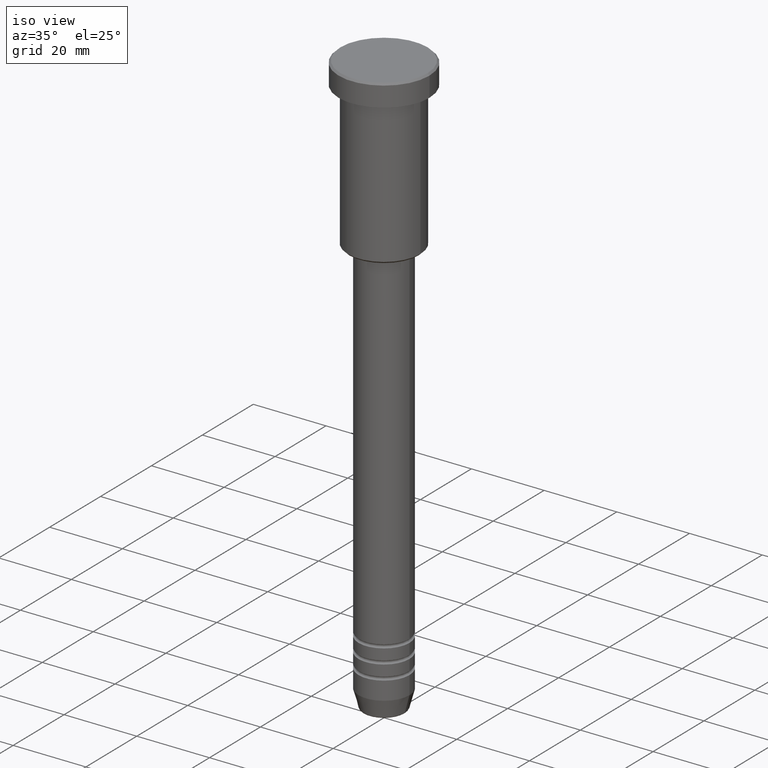
[diagram: clean part render]
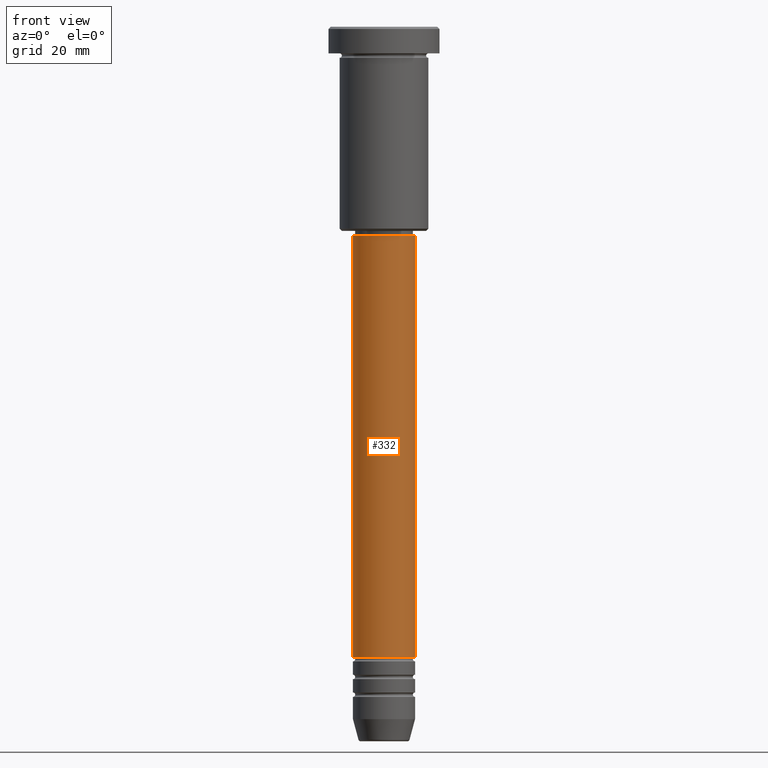
[diagram: tour spotlight — one face highlighted and labeled with its STEP entity id]
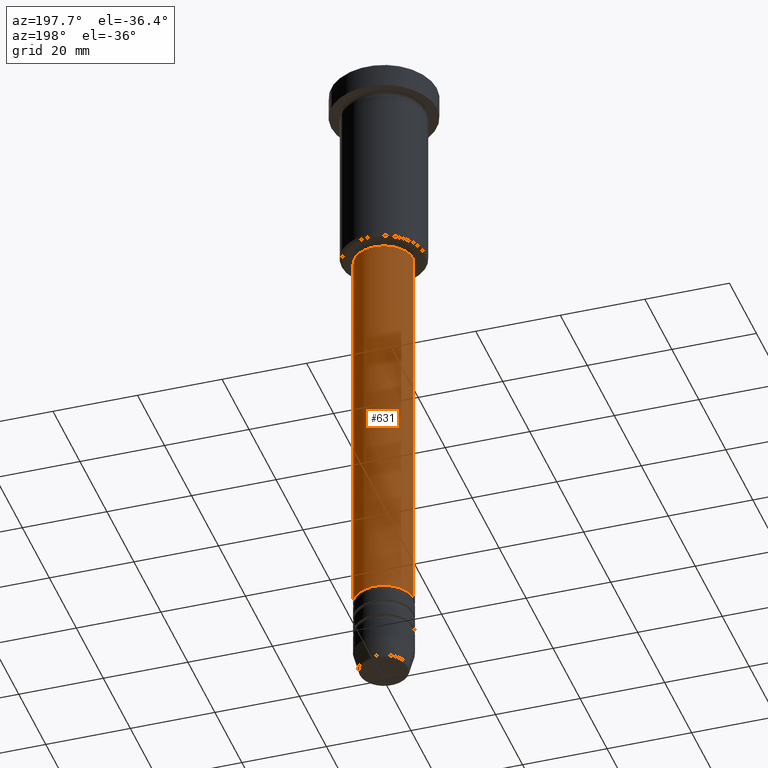
[diagram: tour spotlight — one face highlighted and labeled with its STEP entity id]
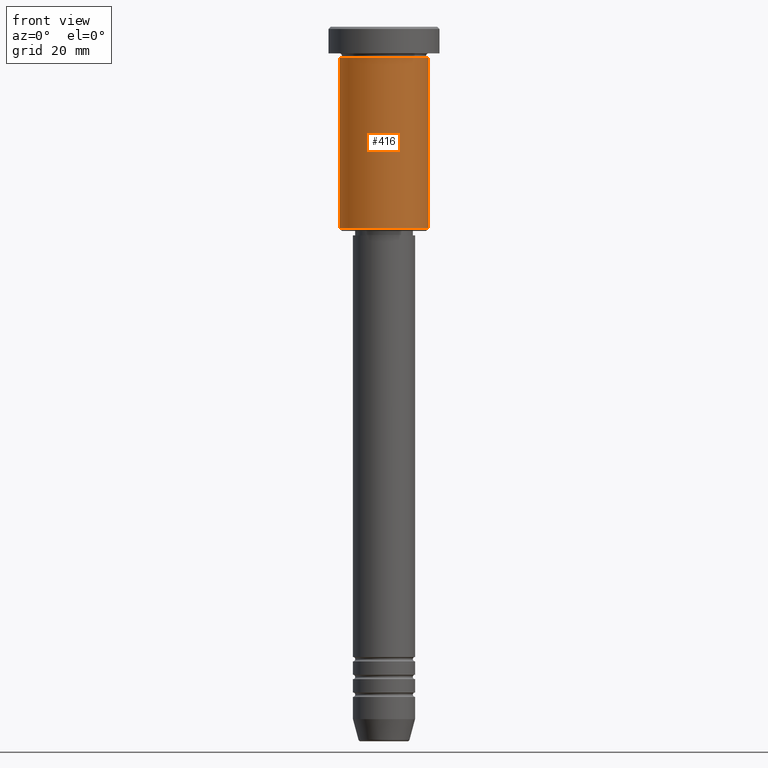
[diagram: tour spotlight — one face highlighted and labeled with its STEP entity id]
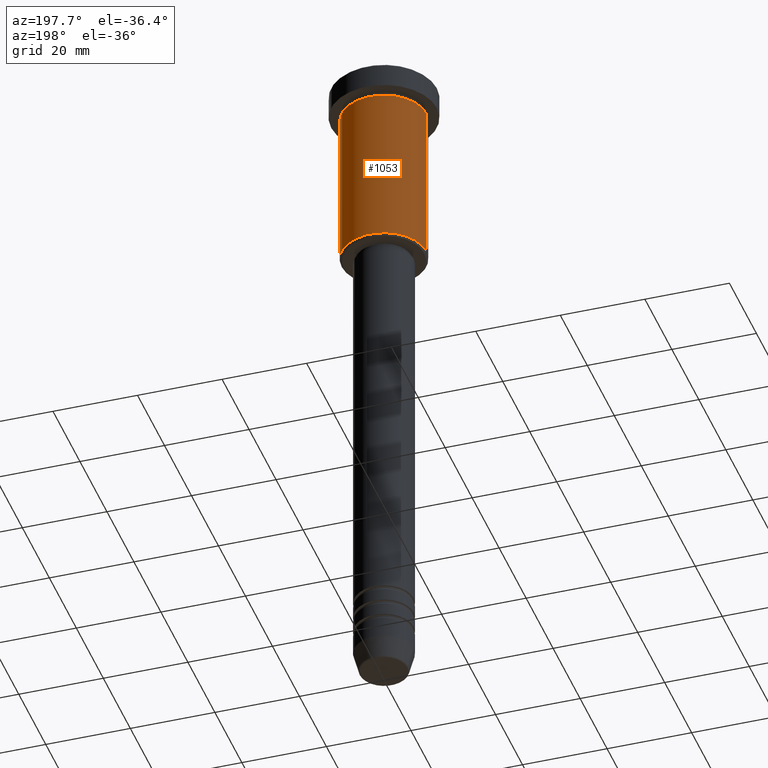
[diagram: tour spotlight — one face highlighted and labeled with its STEP entity id]
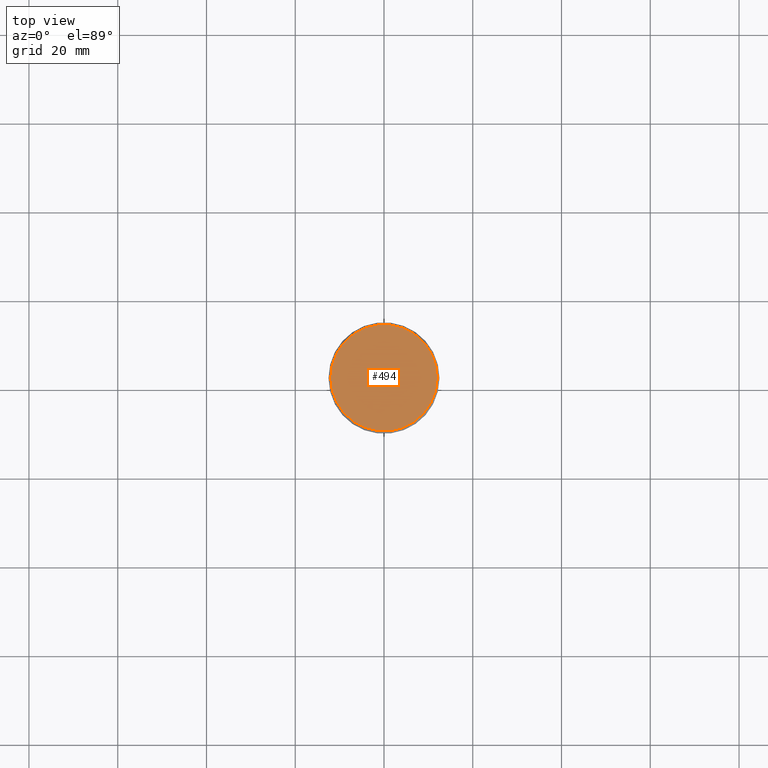
[diagram: tour spotlight — one face highlighted and labeled with its STEP entity id]
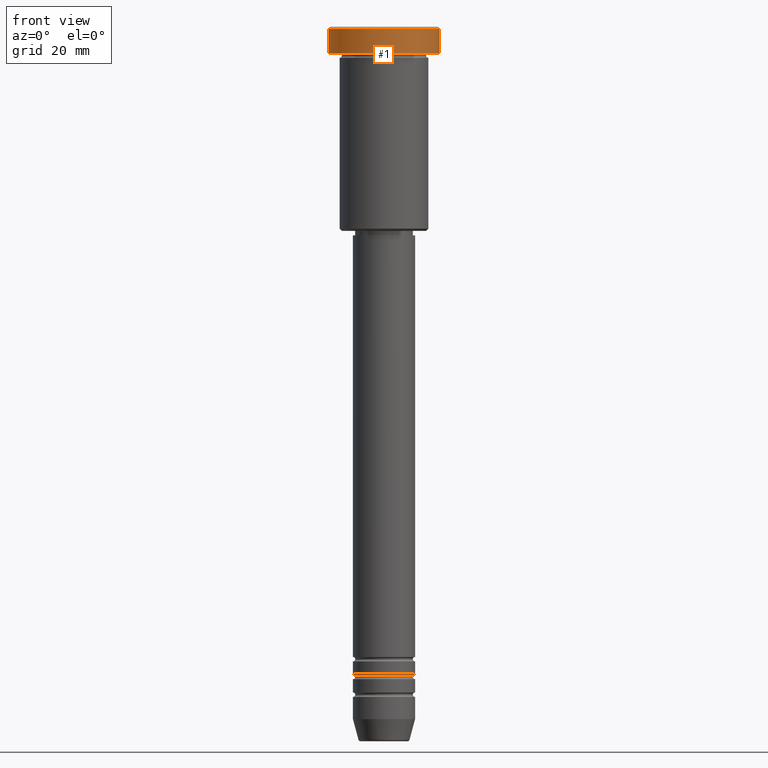
[diagram: tour spotlight — one face highlighted and labeled with its STEP entity id]
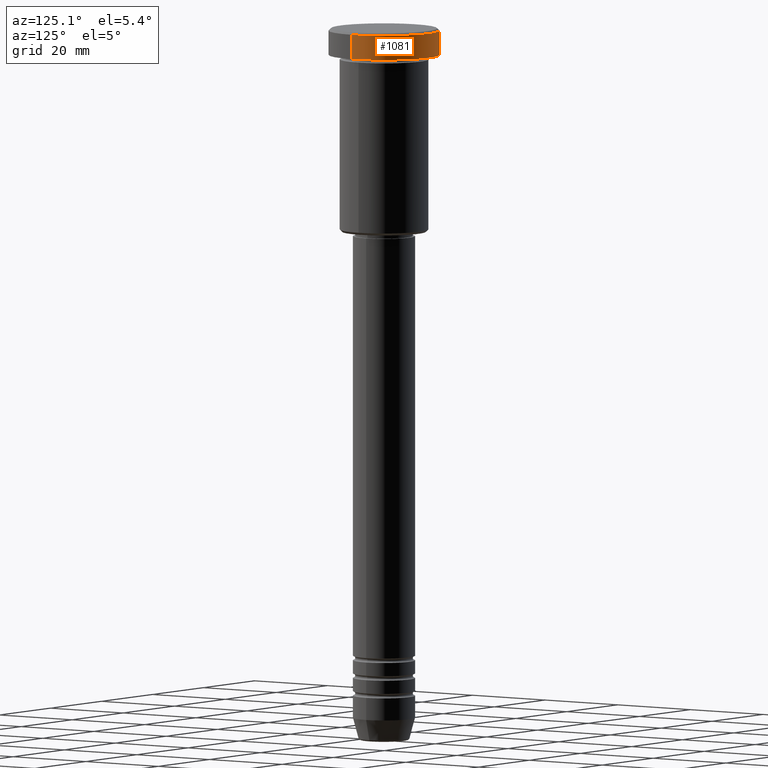
[diagram: tour spotlight — one face highlighted and labeled with its STEP entity id]
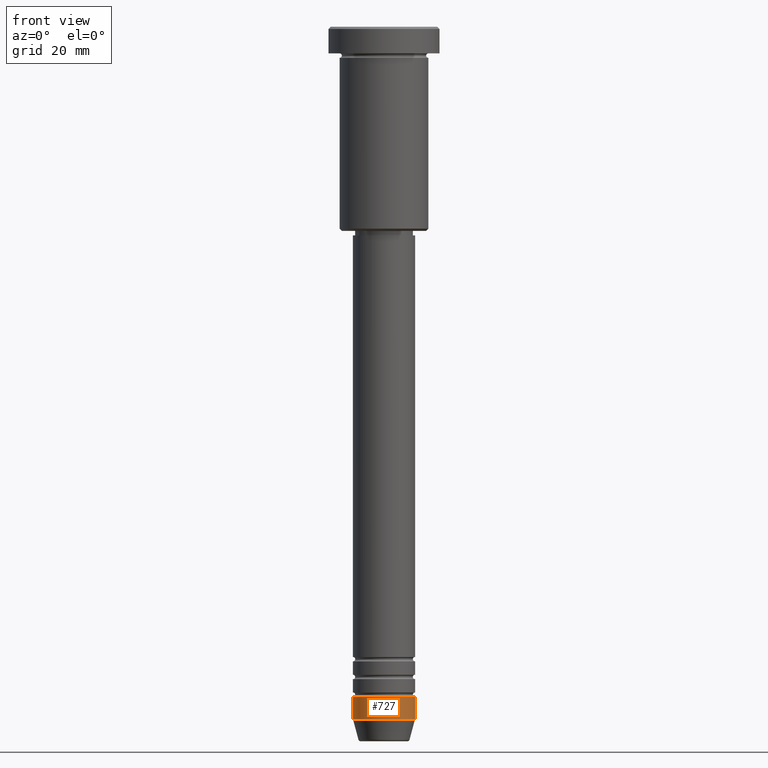
[diagram: tour spotlight — one face highlighted and labeled with its STEP entity id]
A machine part: a face-by-face anatomy tour. The part has 43 B-rep faces; the first image is the clean iso view, then the 8 largest visible faces are spotlighted one at a time (largest first), each with its STEP entity span.

Face 1 — front view, entity #332. In plain terms, the highlighted cylindrical surface (edge-blend (fillet) strip) has radius 7 mm, axis along (-0, -0, 1).
Definition (entity closure, byte-faithful):
#41 = VERTEX_POINT ( 'NONE', #976 ) ;
#63 = ORIENTED_EDGE ( 'NONE', *, *, #873, .T. ) ;
#94 = CARTESIAN_POINT ( 'NONE',  ( 0.000000000000000000, 0.000000000000000000, -141.9999999999999147 ) ) ;
#139 = ORIENTED_EDGE ( 'NONE', *, *, #516, .F. ) ;
#196 = DIRECTION ( 'NONE',  ( -0.000000000000000000, -0.000000000000000000, 1.000000000000000000 ) ) ;
#247 = VECTOR ( 'NONE', #915, 1000.000000000000000 ) ;
#261 = CYLINDRICAL_SURFACE ( 'NONE', #1136, 7.000000000000000888 ) ;
#291 = CARTESIAN_POINT ( 'NONE',  ( -7.000000000000000888, 8.572527594031474176E-16, 0.000000000000000000 ) ) ;
#296 = ORIENTED_EDGE ( 'NONE', *, *, #535, .F. ) ;
#301 = DIRECTION ( 'NONE',  ( 1.000000000000000000, 0.000000000000000000, 0.000000000000000000 ) ) ;
#332 = ADVANCED_FACE ( 'NONE', ( #995 ), #261, .T. ) ;
#342 = DIRECTION ( 'NONE',  ( 1.000000000000000000, 0.000000000000000000, 0.000000000000000000 ) ) ;
#408 = CIRCLE ( 'NONE', #448, 7.000000000000000888 ) ;
#435 = DIRECTION ( 'NONE',  ( -0.000000000000000000, -0.000000000000000000, 1.000000000000000000 ) ) ;
#448 = AXIS2_PLACEMENT_3D ( 'NONE', #929, #470, #832 ) ;
#457 = LINE ( 'NONE', #641, #247 ) ;
#470 = DIRECTION ( 'NONE',  ( -0.000000000000000000, -0.000000000000000000, 1.000000000000000000 ) ) ;
#476 = ORIENTED_EDGE ( 'NONE', *, *, #1157, .T. ) ;
#516 = EDGE_CURVE ( 'NONE', #612, #616, #408, .T. ) ;
#535 = EDGE_CURVE ( 'NONE', #41, #612, #1008, .T. ) ;
#585 = AXIS2_PLACEMENT_3D ( 'NONE', #94, #835, #301 ) ;
#612 = VERTEX_POINT ( 'NONE', #876 ) ;
#616 = VERTEX_POINT ( 'NONE', #856 ) ;
#629 = CARTESIAN_POINT ( 'NONE',  ( 0.000000000000000000, 0.000000000000000000, 0.000000000000000000 ) ) ;
#641 = CARTESIAN_POINT ( 'NONE',  ( 7.000000000000000888, 0.000000000000000000, 0.000000000000000000 ) ) ;
#783 = EDGE_LOOP ( 'NONE', ( #296, #476, #63, #139 ) ) ;
#818 = CARTESIAN_POINT ( 'NONE',  ( 7.000000000000000888, 0.000000000000000000, -141.9999999999999147 ) ) ;
#832 = DIRECTION ( 'NONE',  ( 1.000000000000000000, 0.000000000000000000, 0.000000000000000000 ) ) ;
#835 = DIRECTION ( 'NONE',  ( -0.000000000000000000, -0.000000000000000000, 1.000000000000000000 ) ) ;
#856 = CARTESIAN_POINT ( 'NONE',  ( 7.000000000000000888, 0.000000000000000000, -47.00000000000000711 ) ) ;
#873 = EDGE_CURVE ( 'NONE', #1165, #616, #457, .T. ) ;
#876 = CARTESIAN_POINT ( 'NONE',  ( -7.000000000000000888, 8.572527594031474176E-16, -47.00000000000000711 ) ) ;
#915 = DIRECTION ( 'NONE',  ( -0.000000000000000000, -0.000000000000000000, 1.000000000000000000 ) ) ;
#929 = CARTESIAN_POINT ( 'NONE',  ( 0.000000000000000000, 0.000000000000000000, -47.00000000000000711 ) ) ;
#947 = CIRCLE ( 'NONE', #585, 7.000000000000000888 ) ;
#976 = CARTESIAN_POINT ( 'NONE',  ( -7.000000000000000888, 8.572527594031474176E-16, -141.9999999999999147 ) ) ;
#995 = FACE_OUTER_BOUND ( 'NONE', #783, .T. ) ;
#1008 = LINE ( 'NONE', #291, #1120 ) ;
#1120 = VECTOR ( 'NONE', #196, 1000.000000000000000 ) ;
#1136 = AXIS2_PLACEMENT_3D ( 'NONE', #629, #435, #342 ) ;
#1157 = EDGE_CURVE ( 'NONE', #41, #1165, #947, .T. ) ;
#1165 = VERTEX_POINT ( 'NONE', #818 ) ;

Face 2 — auxiliary view, entity #631. In plain terms, the highlighted cylindrical surface (edge-blend (fillet) strip) has radius 7 mm, axis along (-0, -0, 1).
Definition (entity closure, byte-faithful):
#41 = VERTEX_POINT ( 'NONE', #976 ) ;
#64 = FACE_OUTER_BOUND ( 'NONE', #868, .T. ) ;
#71 = AXIS2_PLACEMENT_3D ( 'NONE', #1128, #780, #1050 ) ;
#128 = AXIS2_PLACEMENT_3D ( 'NONE', #898, #791, #811 ) ;
#196 = DIRECTION ( 'NONE',  ( -0.000000000000000000, -0.000000000000000000, 1.000000000000000000 ) ) ;
#244 = CYLINDRICAL_SURFACE ( 'NONE', #71, 7.000000000000000888 ) ;
#247 = VECTOR ( 'NONE', #915, 1000.000000000000000 ) ;
#291 = CARTESIAN_POINT ( 'NONE',  ( -7.000000000000000888, 8.572527594031474176E-16, 0.000000000000000000 ) ) ;
#426 = EDGE_CURVE ( 'NONE', #616, #612, #809, .T. ) ;
#432 = ORIENTED_EDGE ( 'NONE', *, *, #732, .T. ) ;
#443 = ORIENTED_EDGE ( 'NONE', *, *, #426, .F. ) ;
#453 = CARTESIAN_POINT ( 'NONE',  ( 0.000000000000000000, 0.000000000000000000, -47.00000000000000711 ) ) ;
#457 = LINE ( 'NONE', #641, #247 ) ;
#535 = EDGE_CURVE ( 'NONE', #41, #612, #1008, .T. ) ;
#569 = DIRECTION ( 'NONE',  ( 1.000000000000000000, 0.000000000000000000, 0.000000000000000000 ) ) ;
#612 = VERTEX_POINT ( 'NONE', #876 ) ;
#616 = VERTEX_POINT ( 'NONE', #856 ) ;
#631 = ADVANCED_FACE ( 'NONE', ( #64 ), #244, .T. ) ;
#641 = CARTESIAN_POINT ( 'NONE',  ( 7.000000000000000888, 0.000000000000000000, 0.000000000000000000 ) ) ;
#685 = CIRCLE ( 'NONE', #128, 7.000000000000000888 ) ;
#718 = ORIENTED_EDGE ( 'NONE', *, *, #535, .T. ) ;
#732 = EDGE_CURVE ( 'NONE', #1165, #41, #685, .T. ) ;
#780 = DIRECTION ( 'NONE',  ( -0.000000000000000000, -0.000000000000000000, 1.000000000000000000 ) ) ;
#791 = DIRECTION ( 'NONE',  ( -0.000000000000000000, -0.000000000000000000, 1.000000000000000000 ) ) ;
#809 = CIRCLE ( 'NONE', #1080, 7.000000000000000888 ) ;
#811 = DIRECTION ( 'NONE',  ( 1.000000000000000000, 0.000000000000000000, 0.000000000000000000 ) ) ;
#818 = CARTESIAN_POINT ( 'NONE',  ( 7.000000000000000888, 0.000000000000000000, -141.9999999999999147 ) ) ;
#856 = CARTESIAN_POINT ( 'NONE',  ( 7.000000000000000888, 0.000000000000000000, -47.00000000000000711 ) ) ;
#868 = EDGE_LOOP ( 'NONE', ( #432, #718, #443, #1089 ) ) ;
#873 = EDGE_CURVE ( 'NONE', #1165, #616, #457, .T. ) ;
#876 = CARTESIAN_POINT ( 'NONE',  ( -7.000000000000000888, 8.572527594031474176E-16, -47.00000000000000711 ) ) ;
#898 = CARTESIAN_POINT ( 'NONE',  ( 0.000000000000000000, 0.000000000000000000, -141.9999999999999147 ) ) ;
#915 = DIRECTION ( 'NONE',  ( -0.000000000000000000, -0.000000000000000000, 1.000000000000000000 ) ) ;
#916 = DIRECTION ( 'NONE',  ( -0.000000000000000000, -0.000000000000000000, 1.000000000000000000 ) ) ;
#976 = CARTESIAN_POINT ( 'NONE',  ( -7.000000000000000888, 8.572527594031474176E-16, -141.9999999999999147 ) ) ;
#1008 = LINE ( 'NONE', #291, #1120 ) ;
#1050 = DIRECTION ( 'NONE',  ( 1.000000000000000000, 0.000000000000000000, 0.000000000000000000 ) ) ;
#1080 = AXIS2_PLACEMENT_3D ( 'NONE', #453, #916, #569 ) ;
#1089 = ORIENTED_EDGE ( 'NONE', *, *, #873, .F. ) ;
#1120 = VECTOR ( 'NONE', #196, 1000.000000000000000 ) ;
#1128 = CARTESIAN_POINT ( 'NONE',  ( 0.000000000000000000, 0.000000000000000000, 0.000000000000000000 ) ) ;
#1165 = VERTEX_POINT ( 'NONE', #818 ) ;

Face 3 — front view, entity #416. In plain terms, the highlighted cylindrical surface (partial cylindrical patch) has radius 10 mm, axis along (-0, -0, 1).
Definition (entity closure, byte-faithful):
#38 = EDGE_CURVE ( 'NONE', #792, #398, #984, .T. ) ;
#48 = ORIENTED_EDGE ( 'NONE', *, *, #860, .T. ) ;
#55 = CIRCLE ( 'NONE', #866, 10.00000000000000000 ) ;
#86 = FACE_OUTER_BOUND ( 'NONE', #359, .T. ) ;
#111 = CARTESIAN_POINT ( 'NONE',  ( 10.00000000000000000, 0.000000000000000000, 0.000000000000000000 ) ) ;
#133 = VECTOR ( 'NONE', #377, 1000.000000000000000 ) ;
#201 = CARTESIAN_POINT ( 'NONE',  ( 10.00000000000000000, 0.000000000000000000, -45.49999999999997158 ) ) ;
#211 = CARTESIAN_POINT ( 'NONE',  ( -10.00000000000000000, 1.224646799147353256E-15, 0.000000000000000000 ) ) ;
#258 = CARTESIAN_POINT ( 'NONE',  ( 0.000000000000000000, 0.000000000000000000, -45.49999999999997158 ) ) ;
#352 = ORIENTED_EDGE ( 'NONE', *, *, #824, .T. ) ;
#358 = CARTESIAN_POINT ( 'NONE',  ( 0.000000000000000000, 0.000000000000000000, 0.000000000000000000 ) ) ;
#359 = EDGE_LOOP ( 'NONE', ( #948, #352, #48, #534 ) ) ;
#377 = DIRECTION ( 'NONE',  ( -0.000000000000000000, -0.000000000000000000, 1.000000000000000000 ) ) ;
#398 = VERTEX_POINT ( 'NONE', #725 ) ;
#407 = AXIS2_PLACEMENT_3D ( 'NONE', #358, #1095, #447 ) ;
#416 = ADVANCED_FACE ( 'NONE', ( #86 ), #730, .T. ) ;
#447 = DIRECTION ( 'NONE',  ( 1.000000000000000000, 0.000000000000000000, 0.000000000000000000 ) ) ;
#472 = VERTEX_POINT ( 'NONE', #201 ) ;
#474 = LINE ( 'NONE', #111, #1122 ) ;
#527 = DIRECTION ( 'NONE',  ( -0.000000000000000000, -0.000000000000000000, 1.000000000000000000 ) ) ;
#534 = ORIENTED_EDGE ( 'NONE', *, *, #38, .F. ) ;
#542 = AXIS2_PLACEMENT_3D ( 'NONE', #1076, #527, #906 ) ;
#586 = VERTEX_POINT ( 'NONE', #971 ) ;
#625 = DIRECTION ( 'NONE',  ( -0.000000000000000000, -0.000000000000000000, 1.000000000000000000 ) ) ;
#725 = CARTESIAN_POINT ( 'NONE',  ( 10.00000000000000000, 0.000000000000000000, -6.999999999999996447 ) ) ;
#730 = CYLINDRICAL_SURFACE ( 'NONE', #407, 10.00000000000000000 ) ;
#792 = VERTEX_POINT ( 'NONE', #1072 ) ;
#824 = EDGE_CURVE ( 'NONE', #586, #472, #55, .T. ) ;
#860 = EDGE_CURVE ( 'NONE', #472, #398, #474, .T. ) ;
#866 = AXIS2_PLACEMENT_3D ( 'NONE', #258, #625, #989 ) ;
#906 = DIRECTION ( 'NONE',  ( 1.000000000000000000, 0.000000000000000000, 0.000000000000000000 ) ) ;
#909 = LINE ( 'NONE', #211, #133 ) ;
#948 = ORIENTED_EDGE ( 'NONE', *, *, #1125, .F. ) ;
#971 = CARTESIAN_POINT ( 'NONE',  ( -10.00000000000000000, 1.224646799147353256E-15, -45.49999999999997158 ) ) ;
#984 = CIRCLE ( 'NONE', #542, 10.00000000000000000 ) ;
#989 = DIRECTION ( 'NONE',  ( -1.000000000000000000, 0.000000000000000000, 0.000000000000000000 ) ) ;
#1011 = DIRECTION ( 'NONE',  ( -0.000000000000000000, -0.000000000000000000, 1.000000000000000000 ) ) ;
#1072 = CARTESIAN_POINT ( 'NONE',  ( -10.00000000000000000, 1.224646799147353256E-15, -6.999999999999996447 ) ) ;
#1076 = CARTESIAN_POINT ( 'NONE',  ( 0.000000000000000000, 0.000000000000000000, -6.999999999999996447 ) ) ;
#1095 = DIRECTION ( 'NONE',  ( -0.000000000000000000, -0.000000000000000000, 1.000000000000000000 ) ) ;
#1122 = VECTOR ( 'NONE', #1011, 1000.000000000000000 ) ;
#1125 = EDGE_CURVE ( 'NONE', #586, #792, #909, .T. ) ;

Face 4 — auxiliary view, entity #1053. In plain terms, the highlighted cylindrical surface (partial cylindrical patch) has radius 10 mm, axis along (-0, -0, 1).
Definition (entity closure, byte-faithful):
#11 = CIRCLE ( 'NONE', #1177, 10.00000000000000000 ) ;
#16 = DIRECTION ( 'NONE',  ( -1.000000000000000000, 0.000000000000000000, 0.000000000000000000 ) ) ;
#111 = CARTESIAN_POINT ( 'NONE',  ( 10.00000000000000000, 0.000000000000000000, 0.000000000000000000 ) ) ;
#116 = CARTESIAN_POINT ( 'NONE',  ( 0.000000000000000000, 0.000000000000000000, -45.49999999999997158 ) ) ;
#121 = DIRECTION ( 'NONE',  ( 1.000000000000000000, 0.000000000000000000, 0.000000000000000000 ) ) ;
#125 = EDGE_CURVE ( 'NONE', #472, #586, #11, .T. ) ;
#133 = VECTOR ( 'NONE', #377, 1000.000000000000000 ) ;
#155 = CIRCLE ( 'NONE', #1024, 10.00000000000000000 ) ;
#181 = ORIENTED_EDGE ( 'NONE', *, *, #860, .F. ) ;
#201 = CARTESIAN_POINT ( 'NONE',  ( 10.00000000000000000, 0.000000000000000000, -45.49999999999997158 ) ) ;
#211 = CARTESIAN_POINT ( 'NONE',  ( -10.00000000000000000, 1.224646799147353256E-15, 0.000000000000000000 ) ) ;
#219 = DIRECTION ( 'NONE',  ( -0.000000000000000000, -0.000000000000000000, 1.000000000000000000 ) ) ;
#302 = CARTESIAN_POINT ( 'NONE',  ( 0.000000000000000000, 0.000000000000000000, -6.999999999999996447 ) ) ;
#308 = CYLINDRICAL_SURFACE ( 'NONE', #488, 10.00000000000000000 ) ;
#320 = ORIENTED_EDGE ( 'NONE', *, *, #125, .T. ) ;
#377 = DIRECTION ( 'NONE',  ( -0.000000000000000000, -0.000000000000000000, 1.000000000000000000 ) ) ;
#393 = DIRECTION ( 'NONE',  ( 1.000000000000000000, 0.000000000000000000, 0.000000000000000000 ) ) ;
#398 = VERTEX_POINT ( 'NONE', #725 ) ;
#404 = ORIENTED_EDGE ( 'NONE', *, *, #1125, .T. ) ;
#409 = DIRECTION ( 'NONE',  ( -0.000000000000000000, -0.000000000000000000, 1.000000000000000000 ) ) ;
#472 = VERTEX_POINT ( 'NONE', #201 ) ;
#474 = LINE ( 'NONE', #111, #1122 ) ;
#488 = AXIS2_PLACEMENT_3D ( 'NONE', #849, #409, #121 ) ;
#495 = FACE_OUTER_BOUND ( 'NONE', #1071, .T. ) ;
#553 = EDGE_CURVE ( 'NONE', #398, #792, #155, .T. ) ;
#586 = VERTEX_POINT ( 'NONE', #971 ) ;
#725 = CARTESIAN_POINT ( 'NONE',  ( 10.00000000000000000, 0.000000000000000000, -6.999999999999996447 ) ) ;
#792 = VERTEX_POINT ( 'NONE', #1072 ) ;
#825 = DIRECTION ( 'NONE',  ( -0.000000000000000000, -0.000000000000000000, 1.000000000000000000 ) ) ;
#849 = CARTESIAN_POINT ( 'NONE',  ( 0.000000000000000000, 0.000000000000000000, 0.000000000000000000 ) ) ;
#860 = EDGE_CURVE ( 'NONE', #472, #398, #474, .T. ) ;
#909 = LINE ( 'NONE', #211, #133 ) ;
#971 = CARTESIAN_POINT ( 'NONE',  ( -10.00000000000000000, 1.224646799147353256E-15, -45.49999999999997158 ) ) ;
#1011 = DIRECTION ( 'NONE',  ( -0.000000000000000000, -0.000000000000000000, 1.000000000000000000 ) ) ;
#1024 = AXIS2_PLACEMENT_3D ( 'NONE', #302, #219, #393 ) ;
#1053 = ADVANCED_FACE ( 'NONE', ( #495 ), #308, .T. ) ;
#1071 = EDGE_LOOP ( 'NONE', ( #320, #404, #1183, #181 ) ) ;
#1072 = CARTESIAN_POINT ( 'NONE',  ( -10.00000000000000000, 1.224646799147353256E-15, -6.999999999999996447 ) ) ;
#1122 = VECTOR ( 'NONE', #1011, 1000.000000000000000 ) ;
#1125 = EDGE_CURVE ( 'NONE', #586, #792, #909, .T. ) ;
#1177 = AXIS2_PLACEMENT_3D ( 'NONE', #116, #825, #16 ) ;
#1183 = ORIENTED_EDGE ( 'NONE', *, *, #553, .F. ) ;

Face 5 — top view, entity #494. In plain terms, the highlighted planar face has unit normal (0, -0, 1).
Definition (entity closure, byte-faithful):
#10 = DIRECTION ( 'NONE',  ( 1.000000000000000000, 0.000000000000000000, 0.000000000000000000 ) ) ;
#85 = EDGE_LOOP ( 'NONE', ( #487, #763 ) ) ;
#114 = DIRECTION ( 'NONE',  ( 1.000000000000000000, 0.000000000000000000, 0.000000000000000000 ) ) ;
#119 = CARTESIAN_POINT ( 'NONE',  ( 0.000000000000000000, 0.000000000000000000, 0.000000000000000000 ) ) ;
#350 = DIRECTION ( 'NONE',  ( 1.000000000000000000, 0.000000000000000000, 0.000000000000000000 ) ) ;
#388 = EDGE_CURVE ( 'NONE', #769, #751, #683, .T. ) ;
#459 = DIRECTION ( 'NONE',  ( 0.000000000000000000, -0.000000000000000000, 1.000000000000000000 ) ) ;
#461 = EDGE_CURVE ( 'NONE', #751, #769, #968, .T. ) ;
#464 = CARTESIAN_POINT ( 'NONE',  ( 0.000000000000000000, 0.000000000000000000, 0.000000000000000000 ) ) ;
#486 = AXIS2_PLACEMENT_3D ( 'NONE', #119, #459, #10 ) ;
#487 = ORIENTED_EDGE ( 'NONE', *, *, #461, .T. ) ;
#494 = ADVANCED_FACE ( 'NONE', ( #552 ), #563, .T. ) ;
#537 = CARTESIAN_POINT ( 'NONE',  ( -11.99999999999999645, 0.000000000000000000, 0.000000000000000000 ) ) ;
#552 = FACE_OUTER_BOUND ( 'NONE', #85, .T. ) ;
#563 = PLANE ( 'NONE',  #486 ) ;
#619 = CARTESIAN_POINT ( 'NONE',  ( 0.000000000000000000, 0.000000000000000000, 0.000000000000000000 ) ) ;
#664 = AXIS2_PLACEMENT_3D ( 'NONE', #619, #1174, #350 ) ;
#683 = CIRCLE ( 'NONE', #664, 11.99999999999999645 ) ;
#751 = VERTEX_POINT ( 'NONE', #537 ) ;
#763 = ORIENTED_EDGE ( 'NONE', *, *, #388, .T. ) ;
#769 = VERTEX_POINT ( 'NONE', #905 ) ;
#827 = DIRECTION ( 'NONE',  ( -0.000000000000000000, -0.000000000000000000, 1.000000000000000000 ) ) ;
#905 = CARTESIAN_POINT ( 'NONE',  ( 11.99999999999999645, 1.500192328955507537E-15, 0.000000000000000000 ) ) ;
#968 = CIRCLE ( 'NONE', #1021, 11.99999999999999645 ) ;
#1021 = AXIS2_PLACEMENT_3D ( 'NONE', #464, #827, #114 ) ;
#1174 = DIRECTION ( 'NONE',  ( -0.000000000000000000, -0.000000000000000000, 1.000000000000000000 ) ) ;

Face 6 — front view, entity #1. In plain terms, the highlighted cylindrical surface (partial cylindrical patch) has radius 12.5 mm, axis along (-0, -0, 1).
Definition (entity closure, byte-faithful):
#1 = ADVANCED_FACE ( 'NONE', ( #1173 ), #348, .T. ) ;
#42 = VERTEX_POINT ( 'NONE', #341 ) ;
#153 = CARTESIAN_POINT ( 'NONE',  ( -12.50000000000000000, 1.530808498934191521E-15, 0.000000000000000000 ) ) ;
#187 = ORIENTED_EDGE ( 'NONE', *, *, #224, .T. ) ;
#207 = VECTOR ( 'NONE', #1056, 1000.000000000000000 ) ;
#224 = EDGE_CURVE ( 'NONE', #42, #894, #1010, .T. ) ;
#253 = ORIENTED_EDGE ( 'NONE', *, *, #1009, .T. ) ;
#263 = ORIENTED_EDGE ( 'NONE', *, *, #1046, .T. ) ;
#286 = DIRECTION ( 'NONE',  ( -0.000000000000000000, -0.000000000000000000, 1.000000000000000000 ) ) ;
#289 = CARTESIAN_POINT ( 'NONE',  ( 12.50000000000000000, 0.000000000000000000, -0.5000000000000056621 ) ) ;
#299 = AXIS2_PLACEMENT_3D ( 'NONE', #950, #600, #859 ) ;
#341 = CARTESIAN_POINT ( 'NONE',  ( 12.50000000000000000, 0.000000000000000000, -5.999999999999996447 ) ) ;
#344 = DIRECTION ( 'NONE',  ( 1.000000000000000000, 0.000000000000000000, 0.000000000000000000 ) ) ;
#348 = CYLINDRICAL_SURFACE ( 'NONE', #1158, 12.50000000000000000 ) ;
#353 = AXIS2_PLACEMENT_3D ( 'NONE', #500, #478, #840 ) ;
#400 = CARTESIAN_POINT ( 'NONE',  ( -12.50000000000000000, 1.530808498934191521E-15, -5.999999999999996447 ) ) ;
#433 = CIRCLE ( 'NONE', #353, 12.50000000000000000 ) ;
#478 = DIRECTION ( 'NONE',  ( -0.000000000000000000, -0.000000000000000000, 1.000000000000000000 ) ) ;
#490 = LINE ( 'NONE', #153, #207 ) ;
#500 = CARTESIAN_POINT ( 'NONE',  ( 0.000000000000000000, 0.000000000000000000, -5.999999999999996447 ) ) ;
#566 = CIRCLE ( 'NONE', #299, 12.50000000000000000 ) ;
#600 = DIRECTION ( 'NONE',  ( 0.000000000000000000, 0.000000000000000000, -1.000000000000000000 ) ) ;
#640 = VECTOR ( 'NONE', #286, 1000.000000000000000 ) ;
#649 = CARTESIAN_POINT ( 'NONE',  ( 12.50000000000000000, 0.000000000000000000, 0.000000000000000000 ) ) ;
#682 = EDGE_CURVE ( 'NONE', #1057, #814, #490, .T. ) ;
#712 = DIRECTION ( 'NONE',  ( -0.000000000000000000, -0.000000000000000000, 1.000000000000000000 ) ) ;
#814 = VERTEX_POINT ( 'NONE', #893 ) ;
#840 = DIRECTION ( 'NONE',  ( 1.000000000000000000, 0.000000000000000000, 0.000000000000000000 ) ) ;
#859 = DIRECTION ( 'NONE',  ( 1.000000000000000000, 0.000000000000000000, 0.000000000000000000 ) ) ;
#893 = CARTESIAN_POINT ( 'NONE',  ( -12.50000000000000000, 1.530808498934191521E-15, -0.5000000000000056621 ) ) ;
#894 = VERTEX_POINT ( 'NONE', #289 ) ;
#950 = CARTESIAN_POINT ( 'NONE',  ( 0.000000000000000000, 0.000000000000000000, -0.5000000000000056621 ) ) ;
#1009 = EDGE_CURVE ( 'NONE', #894, #814, #566, .T. ) ;
#1010 = LINE ( 'NONE', #649, #640 ) ;
#1046 = EDGE_CURVE ( 'NONE', #1057, #42, #433, .T. ) ;
#1052 = ORIENTED_EDGE ( 'NONE', *, *, #682, .F. ) ;
#1056 = DIRECTION ( 'NONE',  ( -0.000000000000000000, -0.000000000000000000, 1.000000000000000000 ) ) ;
#1057 = VERTEX_POINT ( 'NONE', #400 ) ;
#1158 = AXIS2_PLACEMENT_3D ( 'NONE', #1168, #712, #344 ) ;
#1168 = CARTESIAN_POINT ( 'NONE',  ( 0.000000000000000000, 0.000000000000000000, 0.000000000000000000 ) ) ;
#1173 = FACE_OUTER_BOUND ( 'NONE', #1175, .T. ) ;
#1175 = EDGE_LOOP ( 'NONE', ( #1052, #263, #187, #253 ) ) ;

Face 7 — auxiliary view, entity #1081. In plain terms, the highlighted cylindrical surface (partial cylindrical patch) has radius 12.5 mm, axis along (-0, -0, 1).
Definition (entity closure, byte-faithful):
#42 = VERTEX_POINT ( 'NONE', #341 ) ;
#87 = ORIENTED_EDGE ( 'NONE', *, *, #224, .F. ) ;
#135 = EDGE_LOOP ( 'NONE', ( #996, #913, #324, #87 ) ) ;
#153 = CARTESIAN_POINT ( 'NONE',  ( -12.50000000000000000, 1.530808498934191521E-15, 0.000000000000000000 ) ) ;
#167 = CARTESIAN_POINT ( 'NONE',  ( 0.000000000000000000, 0.000000000000000000, -5.999999999999996447 ) ) ;
#170 = DIRECTION ( 'NONE',  ( 0.000000000000000000, 0.000000000000000000, -1.000000000000000000 ) ) ;
#191 = AXIS2_PLACEMENT_3D ( 'NONE', #167, #526, #888 ) ;
#207 = VECTOR ( 'NONE', #1056, 1000.000000000000000 ) ;
#224 = EDGE_CURVE ( 'NONE', #42, #894, #1010, .T. ) ;
#286 = DIRECTION ( 'NONE',  ( -0.000000000000000000, -0.000000000000000000, 1.000000000000000000 ) ) ;
#289 = CARTESIAN_POINT ( 'NONE',  ( 12.50000000000000000, 0.000000000000000000, -0.5000000000000056621 ) ) ;
#304 = DIRECTION ( 'NONE',  ( 1.000000000000000000, 0.000000000000000000, 0.000000000000000000 ) ) ;
#321 = CARTESIAN_POINT ( 'NONE',  ( 0.000000000000000000, 0.000000000000000000, 0.000000000000000000 ) ) ;
#324 = ORIENTED_EDGE ( 'NONE', *, *, #354, .T. ) ;
#341 = CARTESIAN_POINT ( 'NONE',  ( 12.50000000000000000, 0.000000000000000000, -5.999999999999996447 ) ) ;
#354 = EDGE_CURVE ( 'NONE', #814, #894, #1098, .T. ) ;
#371 = AXIS2_PLACEMENT_3D ( 'NONE', #991, #170, #533 ) ;
#400 = CARTESIAN_POINT ( 'NONE',  ( -12.50000000000000000, 1.530808498934191521E-15, -5.999999999999996447 ) ) ;
#418 = CYLINDRICAL_SURFACE ( 'NONE', #1045, 12.50000000000000000 ) ;
#490 = LINE ( 'NONE', #153, #207 ) ;
#526 = DIRECTION ( 'NONE',  ( -0.000000000000000000, -0.000000000000000000, 1.000000000000000000 ) ) ;
#533 = DIRECTION ( 'NONE',  ( 1.000000000000000000, 0.000000000000000000, 0.000000000000000000 ) ) ;
#640 = VECTOR ( 'NONE', #286, 1000.000000000000000 ) ;
#649 = CARTESIAN_POINT ( 'NONE',  ( 12.50000000000000000, 0.000000000000000000, 0.000000000000000000 ) ) ;
#682 = EDGE_CURVE ( 'NONE', #1057, #814, #490, .T. ) ;
#802 = EDGE_CURVE ( 'NONE', #42, #1057, #928, .T. ) ;
#814 = VERTEX_POINT ( 'NONE', #893 ) ;
#888 = DIRECTION ( 'NONE',  ( 1.000000000000000000, 0.000000000000000000, 0.000000000000000000 ) ) ;
#893 = CARTESIAN_POINT ( 'NONE',  ( -12.50000000000000000, 1.530808498934191521E-15, -0.5000000000000056621 ) ) ;
#894 = VERTEX_POINT ( 'NONE', #289 ) ;
#913 = ORIENTED_EDGE ( 'NONE', *, *, #682, .T. ) ;
#928 = CIRCLE ( 'NONE', #191, 12.50000000000000000 ) ;
#991 = CARTESIAN_POINT ( 'NONE',  ( 0.000000000000000000, 0.000000000000000000, -0.5000000000000056621 ) ) ;
#996 = ORIENTED_EDGE ( 'NONE', *, *, #802, .T. ) ;
#1010 = LINE ( 'NONE', #649, #640 ) ;
#1045 = AXIS2_PLACEMENT_3D ( 'NONE', #321, #1126, #304 ) ;
#1056 = DIRECTION ( 'NONE',  ( -0.000000000000000000, -0.000000000000000000, 1.000000000000000000 ) ) ;
#1057 = VERTEX_POINT ( 'NONE', #400 ) ;
#1081 = ADVANCED_FACE ( 'NONE', ( #1144 ), #418, .T. ) ;
#1098 = CIRCLE ( 'NONE', #371, 12.50000000000000000 ) ;
#1126 = DIRECTION ( 'NONE',  ( -0.000000000000000000, -0.000000000000000000, 1.000000000000000000 ) ) ;
#1144 = FACE_OUTER_BOUND ( 'NONE', #135, .T. ) ;

Face 8 — front view, entity #727. In plain terms, the highlighted cylindrical surface (edge-blend (fillet) strip) has radius 7 mm, axis along (-0, -0, 1).
Definition (entity closure, byte-faithful):
#27 = CARTESIAN_POINT ( 'NONE',  ( 7.000000000000000000, 0.000000000000000000, 0.000000000000000000 ) ) ;
#34 = AXIS2_PLACEMENT_3D ( 'NONE', #532, #708, #343 ) ;
#105 = CARTESIAN_POINT ( 'NONE',  ( -7.000000000000000000, 8.572527594031473190E-16, -156.0000000000000284 ) ) ;
#118 = CARTESIAN_POINT ( 'NONE',  ( -7.000000000000000000, 8.572527594031473190E-16, -151.0000000000000284 ) ) ;
#120 = VERTEX_POINT ( 'NONE', #105 ) ;
#163 = DIRECTION ( 'NONE',  ( -0.000000000000000000, -0.000000000000000000, 1.000000000000000000 ) ) ;
#165 = EDGE_CURVE ( 'NONE', #1001, #172, #1093, .T. ) ;
#172 = VERTEX_POINT ( 'NONE', #195 ) ;
#195 = CARTESIAN_POINT ( 'NONE',  ( 7.000000000000000000, 0.000000000000000000, -151.0000000000000284 ) ) ;
#206 = CIRCLE ( 'NONE', #331, 7.000000000000000000 ) ;
#250 = FACE_OUTER_BOUND ( 'NONE', #635, .T. ) ;
#317 = ORIENTED_EDGE ( 'NONE', *, *, #338, .T. ) ;
#331 = AXIS2_PLACEMENT_3D ( 'NONE', #813, #163, #714 ) ;
#338 = EDGE_CURVE ( 'NONE', #120, #1001, #206, .T. ) ;
#343 = DIRECTION ( 'NONE',  ( 1.000000000000000000, 0.000000000000000000, 0.000000000000000000 ) ) ;
#372 = VECTOR ( 'NONE', #1137, 1000.000000000000000 ) ;
#375 = DIRECTION ( 'NONE',  ( -0.000000000000000000, -0.000000000000000000, 1.000000000000000000 ) ) ;
#440 = CYLINDRICAL_SURFACE ( 'NONE', #34, 7.000000000000000000 ) ;
#458 = DIRECTION ( 'NONE',  ( -0.000000000000000000, -0.000000000000000000, 1.000000000000000000 ) ) ;
#532 = CARTESIAN_POINT ( 'NONE',  ( 0.000000000000000000, 0.000000000000000000, 0.000000000000000000 ) ) ;
#549 = CIRCLE ( 'NONE', #1180, 7.000000000000000000 ) ;
#604 = ORIENTED_EDGE ( 'NONE', *, *, #1176, .F. ) ;
#635 = EDGE_LOOP ( 'NONE', ( #604, #317, #689, #1096 ) ) ;
#680 = LINE ( 'NONE', #1127, #372 ) ;
#689 = ORIENTED_EDGE ( 'NONE', *, *, #165, .T. ) ;
#708 = DIRECTION ( 'NONE',  ( -0.000000000000000000, -0.000000000000000000, 1.000000000000000000 ) ) ;
#714 = DIRECTION ( 'NONE',  ( 1.000000000000000000, 0.000000000000000000, 0.000000000000000000 ) ) ;
#727 = ADVANCED_FACE ( 'NONE', ( #250 ), #440, .T. ) ;
#733 = CARTESIAN_POINT ( 'NONE',  ( 0.000000000000000000, 0.000000000000000000, -151.0000000000000284 ) ) ;
#774 = VECTOR ( 'NONE', #458, 1000.000000000000000 ) ;
#813 = CARTESIAN_POINT ( 'NONE',  ( 0.000000000000000000, 0.000000000000000000, -156.0000000000000284 ) ) ;
#900 = EDGE_CURVE ( 'NONE', #1150, #172, #549, .T. ) ;
#920 = DIRECTION ( 'NONE',  ( 1.000000000000000000, 0.000000000000000000, 0.000000000000000000 ) ) ;
#1001 = VERTEX_POINT ( 'NONE', #1054 ) ;
#1054 = CARTESIAN_POINT ( 'NONE',  ( 7.000000000000000000, 0.000000000000000000, -156.0000000000000284 ) ) ;
#1093 = LINE ( 'NONE', #27, #774 ) ;
#1096 = ORIENTED_EDGE ( 'NONE', *, *, #900, .F. ) ;
#1127 = CARTESIAN_POINT ( 'NONE',  ( -7.000000000000000000, 8.572527594031473190E-16, 0.000000000000000000 ) ) ;
#1137 = DIRECTION ( 'NONE',  ( -0.000000000000000000, -0.000000000000000000, 1.000000000000000000 ) ) ;
#1150 = VERTEX_POINT ( 'NONE', #118 ) ;
#1176 = EDGE_CURVE ( 'NONE', #120, #1150, #680, .T. ) ;
#1180 = AXIS2_PLACEMENT_3D ( 'NONE', #733, #375, #920 ) ;